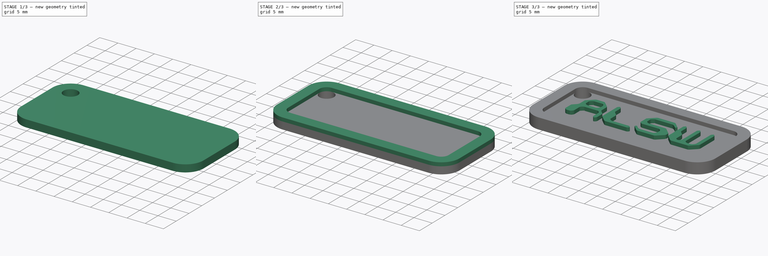
[diagram: build sequence overview — one tinted view per stage of 3, left to right]
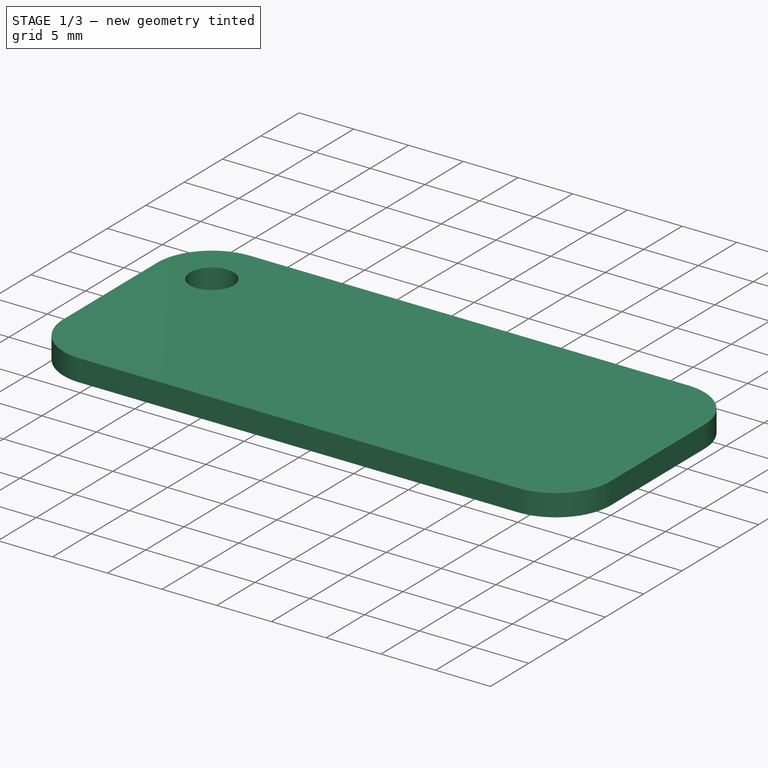
[diagram: stage 1 of 3 — iso view after this stage's code; geometry added in this stage tinted green]
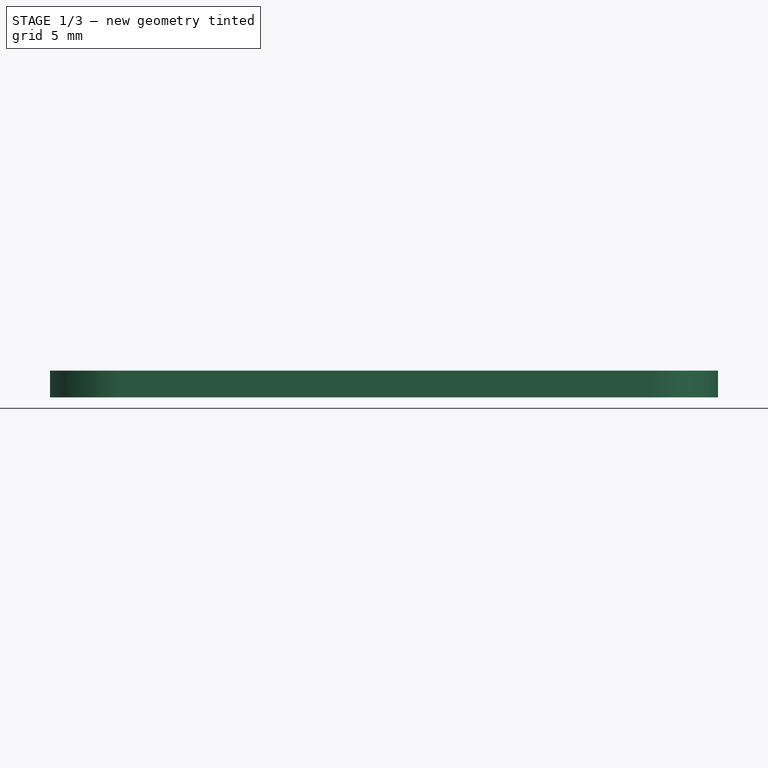
[diagram: stage 1 of 3 — front view after this stage's code; geometry added in this stage tinted green]
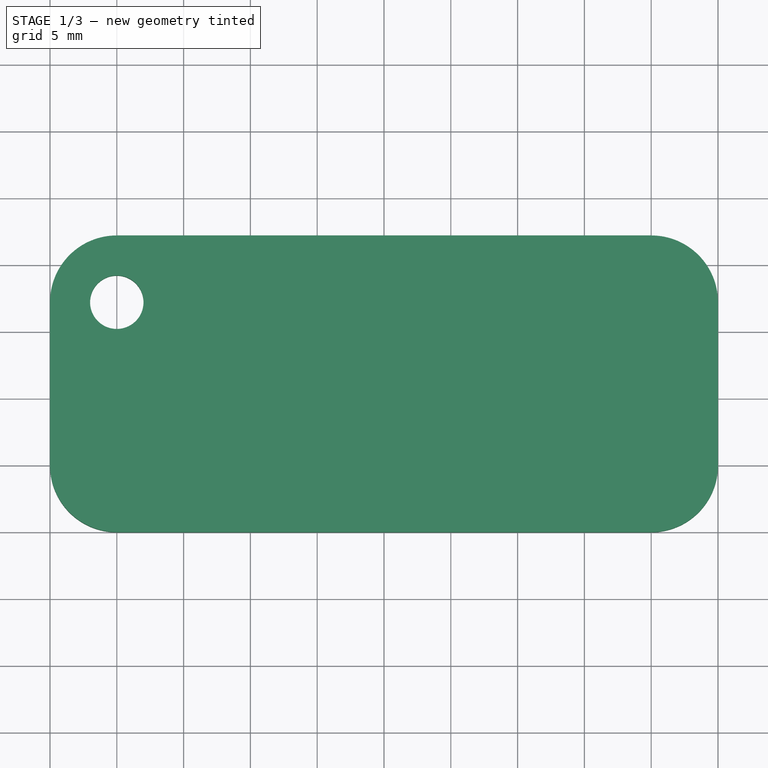
[diagram: stage 1 of 3 — top view after this stage's code; geometry added in this stage tinted green]
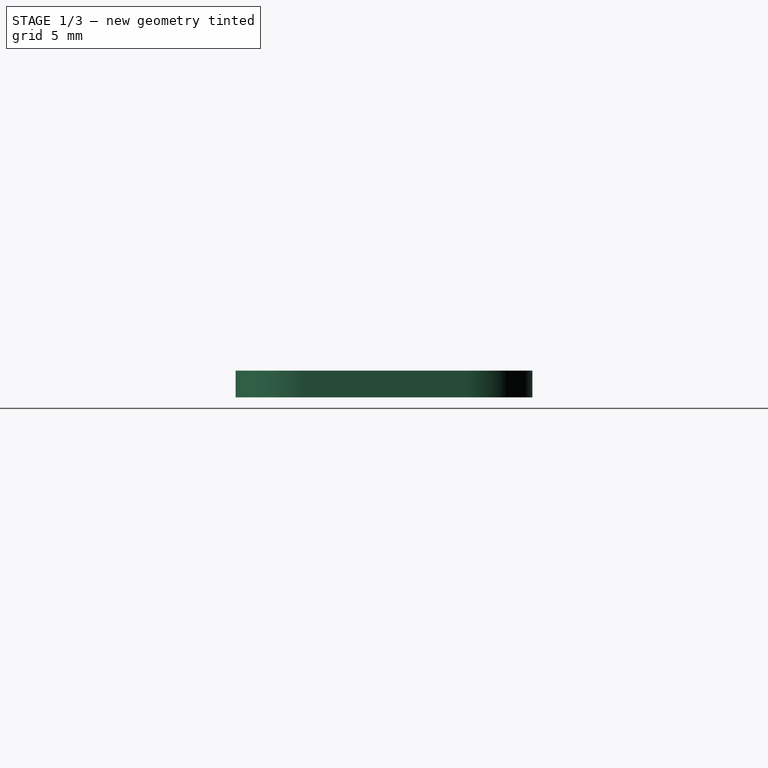
[diagram: stage 1 of 3 — right view after this stage's code; geometry added in this stage tinted green]
FCSTD DOCUMENT  (FreeCAD 0.15R4671 (Git))
Label: Llavero Logo
License: All rights reserved
LicenseURL: http://en.wikipedia.org/wiki/All_rights_reserved
objects: Part::Feature×5, Sketcher::SketchObject×3, Part::Extrusion×3, Part::FeaturePython×1, PartDesign::Pocket×1, Part::MultiFuse×1
note: 15 computed .brp shape members not serialized (recipe doc carries the construction recipe); baked Part::Feature solids carry a one-line shape summary decoded from their .brp

FEATURE [Sketcher::SketchObject] Sketch001
  sketch-geometry (8):
    g0: LineSegment StartX=5 StartY=22.21 StartZ=0 EndX=45 EndY=22.21 EndZ=0
    g1: LineSegment StartX=50 StartY=17.21 StartZ=0 EndX=50 EndY=5 EndZ=0
    g2: LineSegment StartX=45 StartY=0 StartZ=0 EndX=5 EndY=0 EndZ=0
    g3: LineSegment StartX=0 StartY=5 StartZ=0 EndX=0 EndY=17.21 EndZ=0
    g4: ArcOfCircle CenterX=5 CenterY=5 CenterZ=0 NormalX=0 NormalY=0 NormalZ=1 Radius=5 StartAngle=3.14159 EndAngle=4.71239
    g5: ArcOfCircle CenterX=45 CenterY=5 CenterZ=0 NormalX=0 NormalY=0 NormalZ=1 Radius=5 StartAngle=4.71239 EndAngle=6.28319
    g6: ArcOfCircle CenterX=45 CenterY=17.21 CenterZ=0 NormalX=0 NormalY=0 NormalZ=1 Radius=5 StartAngle=0 EndAngle=1.5708
    g7: ArcOfCircle CenterX=5 CenterY=17.21 CenterZ=0 NormalX=0 NormalY=0 NormalZ=1 Radius=5 StartAngle=1.5708 EndAngle=3.14159
  constraints (20):
    c: Horizontal(g0)
    c: Horizontal(g2)
    c: Vertical(g1)
    c: Vertical(g3)
    c: Tangent(g3,g4) = 1.5708
    c: Tangent(g2,g4) = 1.5708
    c: Tangent(g2,g5) = 1.5708
    c: Tangent(g1,g5) = 1.5708
    c: Tangent(g1,g6) = 1.5708
    c: Tangent(g0,g6) = 1.5708
    c: Tangent(g3,g7) = 1.5708
    c: Tangent(g0,g7) = 1.5708
    c: Radius(g4) = 5
    c: Radius(g7) = 5
    c: Radius(g6) = 5
    c: Radius(g5) = 5
    c: DistanceX(g3,g1) = 50
    c: DistanceY(g0,g2) = -22.21
    c: DistanceX(g-1,g4) = 5
    c: DistanceY(g-1,g4) = 5
FEATURE [Part::Extrusion] Extrude004
  Base = -> Sketch001
  Dir = (0,0,-2)
  Solid = true
FEATURE [Sketcher::SketchObject] Sketch002
  ExternalGeometry = -> [Extrude004]
  Support = -> Extrude004 [Face9]
  sketch-geometry (1):
    g0: Circle CenterX=5 CenterY=17.21 CenterZ=0 NormalX=0 NormalY=0 NormalZ=1 Radius=2
  constraints (2):
    c: Coincident(g0,g-3)
    c: Radius(g0) = 2
FEATURE [PartDesign::Pocket] Pocket
  Length = 5
  Sketch = -> Sketch002
  Type = 0
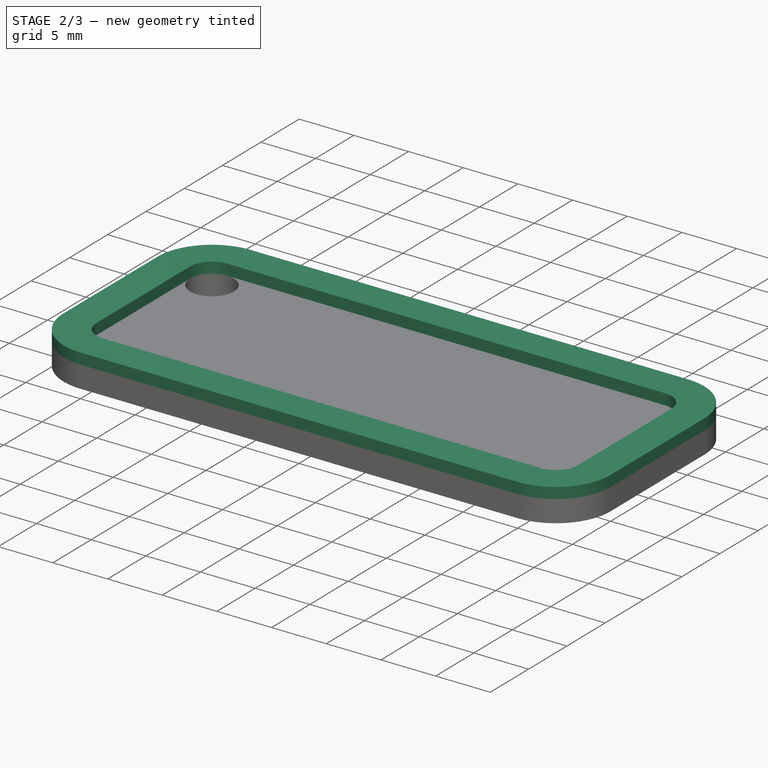
[diagram: stage 2 of 3 — iso view after this stage's code; geometry added in this stage tinted green]
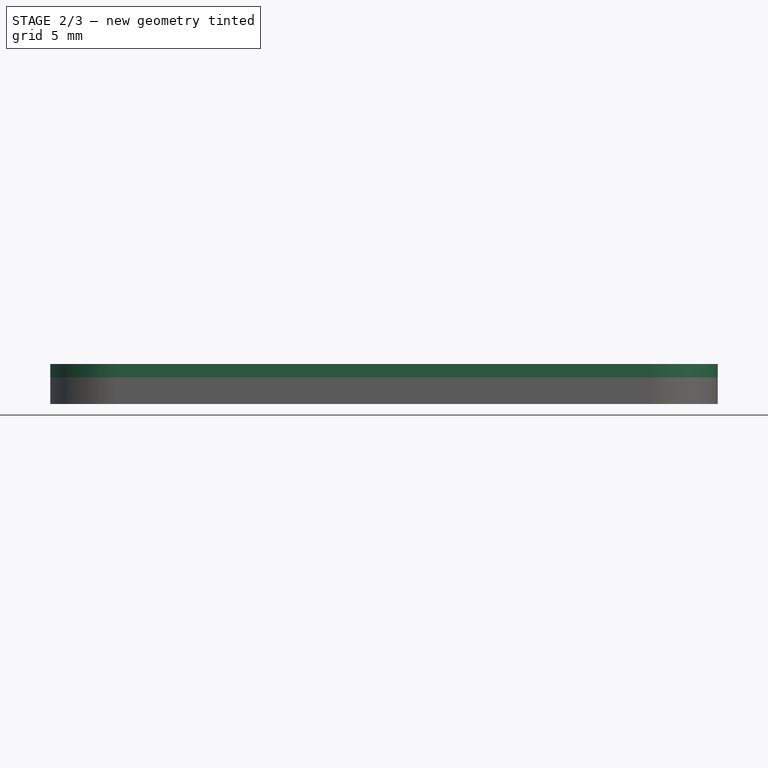
[diagram: stage 2 of 3 — front view after this stage's code; geometry added in this stage tinted green]
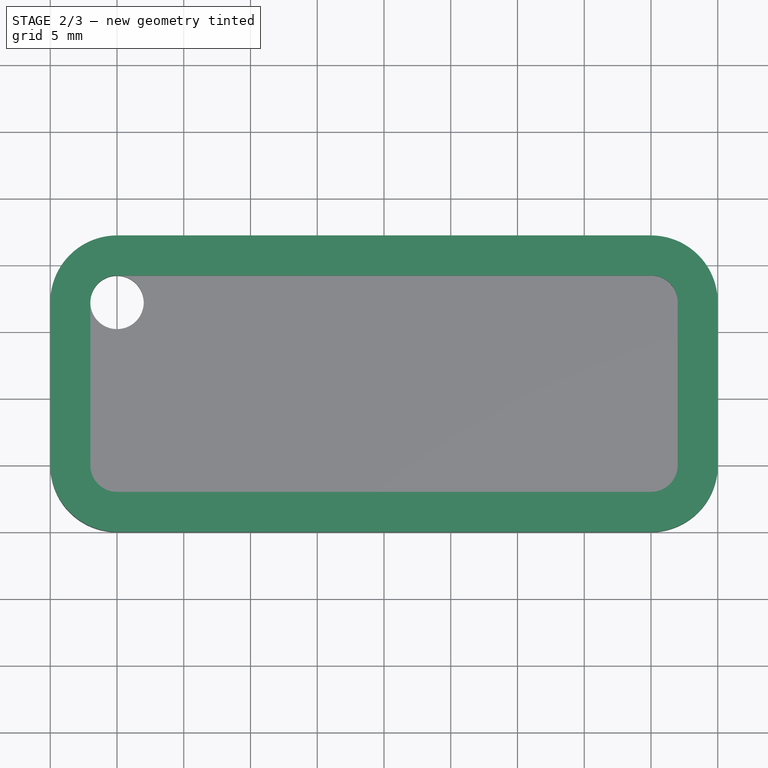
[diagram: stage 2 of 3 — top view after this stage's code; geometry added in this stage tinted green]
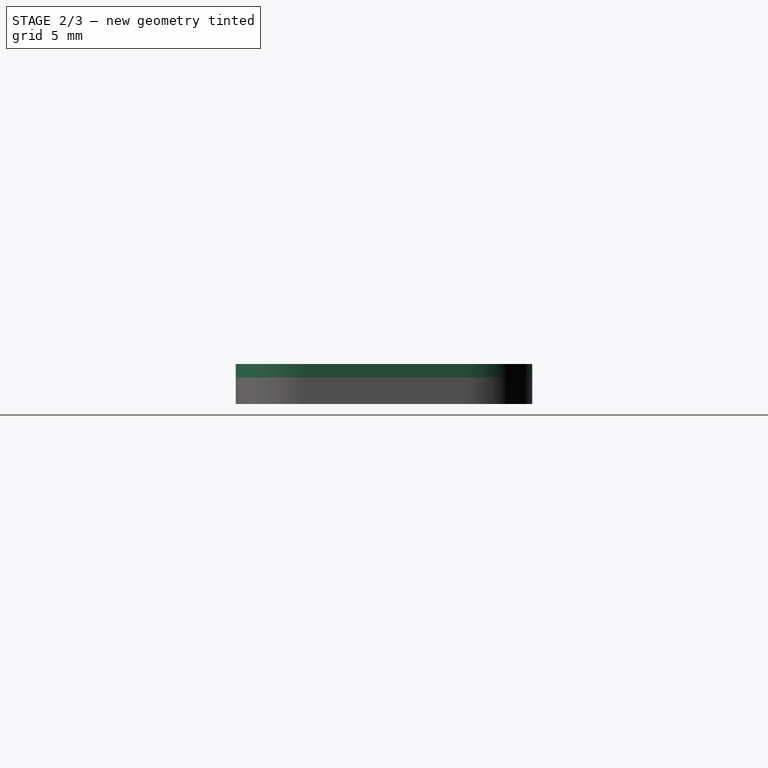
[diagram: stage 2 of 3 — right view after this stage's code; geometry added in this stage tinted green]
FEATURE [Part::Extrusion] Extrude001
  Base = -> Sketch
  Dir = (0,0,1)
  Solid = true
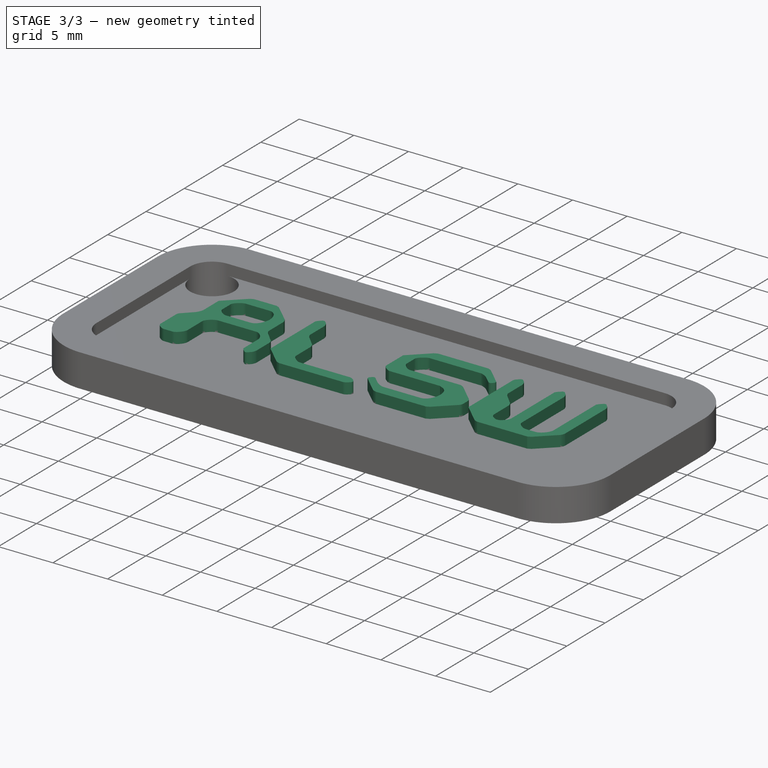
[diagram: stage 3 of 3 — iso view after this stage's code; geometry added in this stage tinted green]
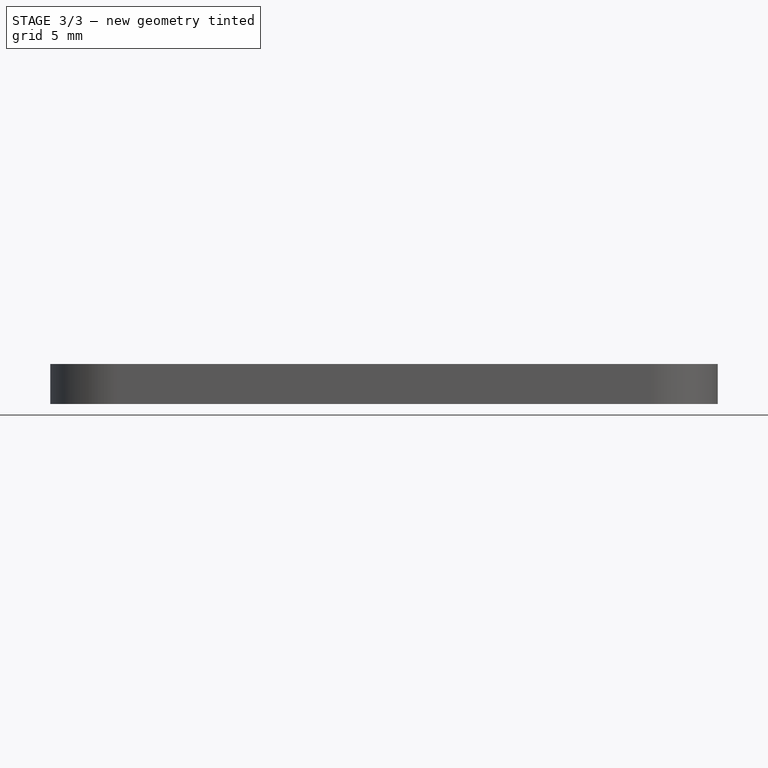
[diagram: stage 3 of 3 — front view after this stage's code; geometry added in this stage tinted green]
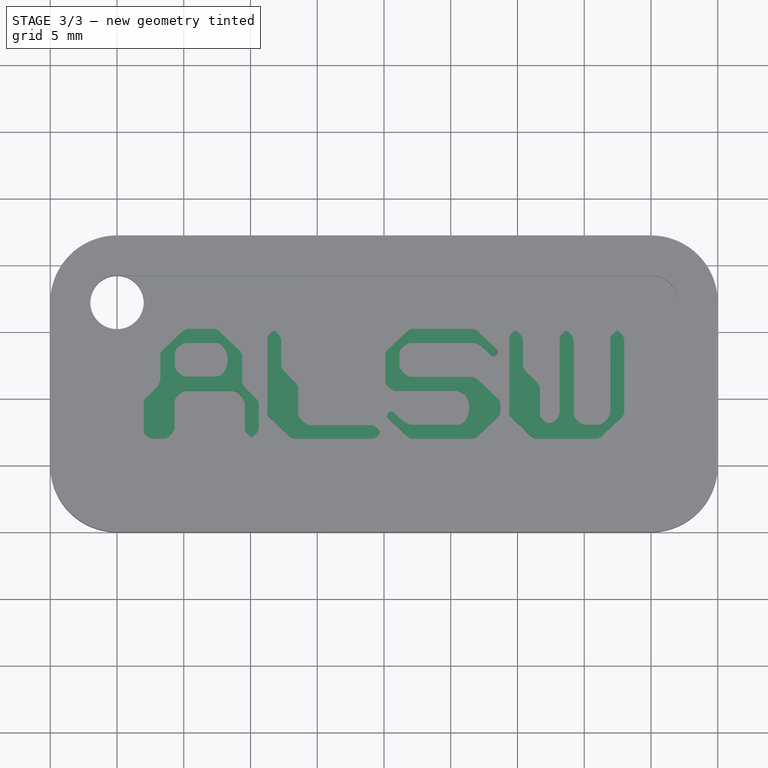
[diagram: stage 3 of 3 — top view after this stage's code; geometry added in this stage tinted green]
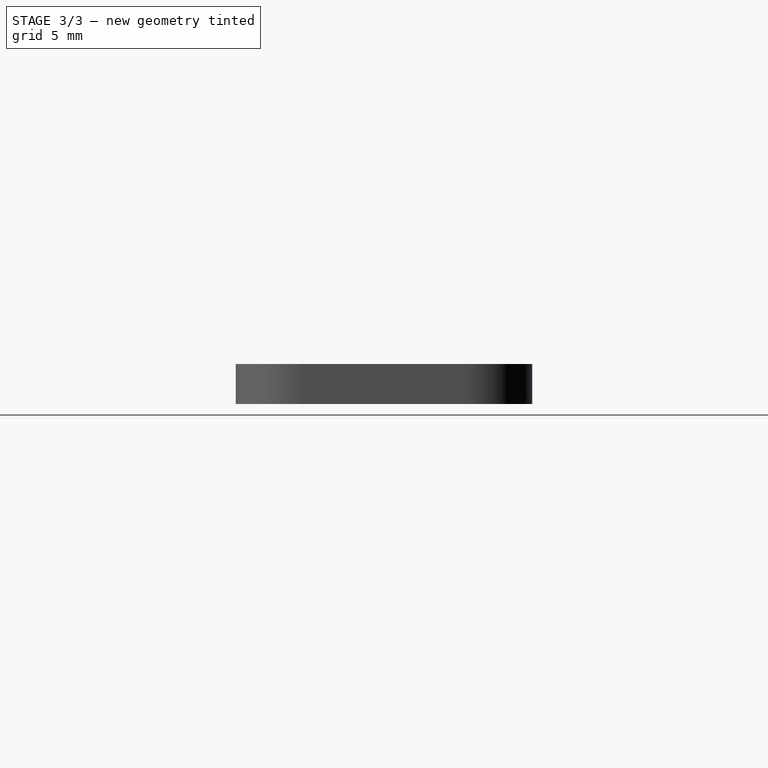
[diagram: stage 3 of 3 — right view after this stage's code; geometry added in this stage tinted green]
FEATURE [Part::Feature] path4550001  label="W"
  Placement = pos=(-49.0867,79.3521,0) rot=(0,0,1;0rad)
  shape: bbox 50.97 x 47.66 x 2e-07 mm, 0 faces, 0 solids (baked)
FEATURE [Part::Feature] path4548001  label="S"
  Placement = pos=(-49.0867,79.3521,0) rot=(0,0,1;0rad)
  shape: bbox 50.97 x 48.54 x 2e-07 mm, 0 faces, 0 solids (baked)
FEATURE [Part::Feature] path4546001  label="L"
  Placement = pos=(-49.0867,79.3521,0) rot=(0,0,1;0rad)
  shape: bbox 49.83 x 47.66 x 2e-07 mm, 0 faces, 0 solids (baked)
FEATURE [Part::Feature] path4544001  label="A1"
  Placement = pos=(-49.0867,79.3521,0) rot=(0,0,1;0rad)
  shape: bbox 50.97 x 48.54 x 2e-07 mm, 0 faces, 0 solids (baked)
FEATURE [Part::Feature] path4544002  label="A2"
  Placement = pos=(-49.0867,79.3521,0) rot=(0,0,1;0rad)
  shape: bbox 23.41 x 15.07 x 2e-07 mm, 0 faces, 0 solids (baked)
FEATURE [Sketcher::SketchObject] Sketch
  sketch-geometry (16):
    g0: LineSegment StartX=5 StartY=19.21 StartZ=0 EndX=45 EndY=19.21 EndZ=0
    g1: LineSegment StartX=47 StartY=17.21 StartZ=0 EndX=47 EndY=5 EndZ=0
    g2: LineSegment StartX=45 StartY=3 StartZ=0 EndX=5 EndY=3 EndZ=0
    g3: LineSegment StartX=3 StartY=5 StartZ=0 EndX=3 EndY=17.21 EndZ=0
    g4: ArcOfCircle CenterX=5 CenterY=17.21 CenterZ=0 NormalX=0 NormalY=0 NormalZ=1 Radius=2 StartAngle=1.5708 EndAngle=3.14159
    g5: ArcOfCircle CenterX=45 CenterY=17.21 CenterZ=0 NormalX=0 NormalY=0 NormalZ=1 Radius=2 StartAngle=0 EndAngle=1.5708
    g6: ArcOfCircle CenterX=45 CenterY=5 CenterZ=0 NormalX=0 NormalY=0 NormalZ=1 Radius=2 StartAngle=4.71239 EndAngle=6.28319
    g7: ArcOfCircle CenterX=5 CenterY=5 CenterZ=0 NormalX=0 NormalY=0 NormalZ=1 Radius=2 StartAngle=3.14159 EndAngle=4.71239
    g8: LineSegment StartX=5 StartY=22.21 StartZ=0 EndX=45 EndY=22.21 EndZ=0
    g9: LineSegment StartX=50 StartY=17.21 StartZ=0 EndX=50 EndY=5 EndZ=0
    g10: LineSegment StartX=45 StartY=0 StartZ=0 EndX=5 EndY=0 EndZ=0
    g11: LineSegment StartX=0 StartY=5 StartZ=0 EndX=0 EndY=17.21 EndZ=0
    g12: ArcOfCircle CenterX=5 CenterY=5 CenterZ=0 NormalX=0 NormalY=0 NormalZ=1 Radius=5 StartAngle=3.14159 EndAngle=4.71239
    g13: ArcOfCircle CenterX=45 CenterY=5 CenterZ=0 NormalX=0 NormalY=0 NormalZ=1 Radius=5 StartAngle=4.71239 EndAngle=6.28319
    g14: ArcOfCircle CenterX=45 CenterY=17.21 CenterZ=0 NormalX=0 NormalY=0 NormalZ=1 Radius=5 StartAngle=0 EndAngle=1.5708
    g15: ArcOfCircle CenterX=5 CenterY=17.21 CenterZ=0 NormalX=0 NormalY=0 NormalZ=1 Radius=5 StartAngle=1.5708 EndAngle=3.14159
  constraints (40):
    c: Horizontal(g0)
    c: Horizontal(g2)
    c: Vertical(g1)
    c: Vertical(g3)
    c: Tangent(g3,g4) = 1.5708
    c: Tangent(g0,g4) = 1.5708
    c: Tangent(g0,g5) = 1.5708
    c: Tangent(g1,g5) = 1.5708
    c: Tangent(g1,g6) = 1.5708
    c: Tangent(g2,g6) = 1.5708
    c: Tangent(g2,g7) = 1.5708
    c: Tangent(g3,g7) = 1.5708
    c: Horizontal(g8)
    c: Horizontal(g10)
    c: Vertical(g9)
    c: Vertical(g11)
    c: Tangent(g11,g12) = 1.5708
    c: Tangent(g10,g12) = 1.5708
    c: Tangent(g10,g13) = 1.5708
    c: Tangent(g9,g13) = 1.5708
    c: Tangent(g9,g14) = 1.5708
    c: Tangent(g8,g14) = 1.5708
    c: Tangent(g11,g15) = 1.5708
    c: Tangent(g8,g15) = 1.5708
    c: Radius(g12) = 5
    c: Radius(g7) = 2
    c: DistanceX(g11,g3) = 3
    c: DistanceY(g2,g10) = -3
    c: Radius(g4) = 2
    c: Radius(g15) = 5
    c: DistanceY(g0,g8) = 3
    c: Radius(g5) = 2
    c: Radius(g14) = 5
    c: DistanceX(g9,g1) = -3
    c: Radius(g6) = 2
    c: Radius(g13) = 5
    c: DistanceX(g-1,g7) = 5
    c: DistanceY(g-1,g7) = 5
    c: DistanceX(g11,g9) = 50
    c: DistanceY(g8,g10) = -22.21
FEATURE [Part::FeaturePython] Scale  # Draft clone (typed FeaturePython)
  Objects = -> [path4550001,path4548001,path4546001,path4544001,path4544002]
  Placement = pos=(7,7,0) rot=(0,0,1;0rad)
  Scale = (0.16914,0.16914,0)
FEATURE [Part::Extrusion] Extrude
  Base = -> Scale
  Dir = (0,0,1)
  Solid = true
FEATURE [Part::MultiFuse] Fusion
  Shapes = -> [Extrude001,Extrude,Pocket]
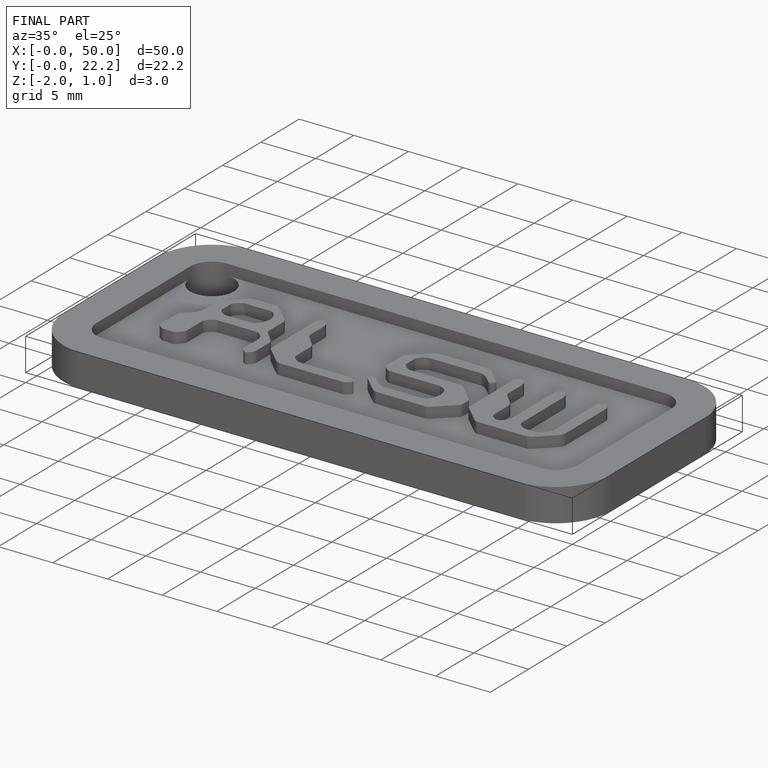
[diagram: finished part — iso view with bounding-box wireframe]
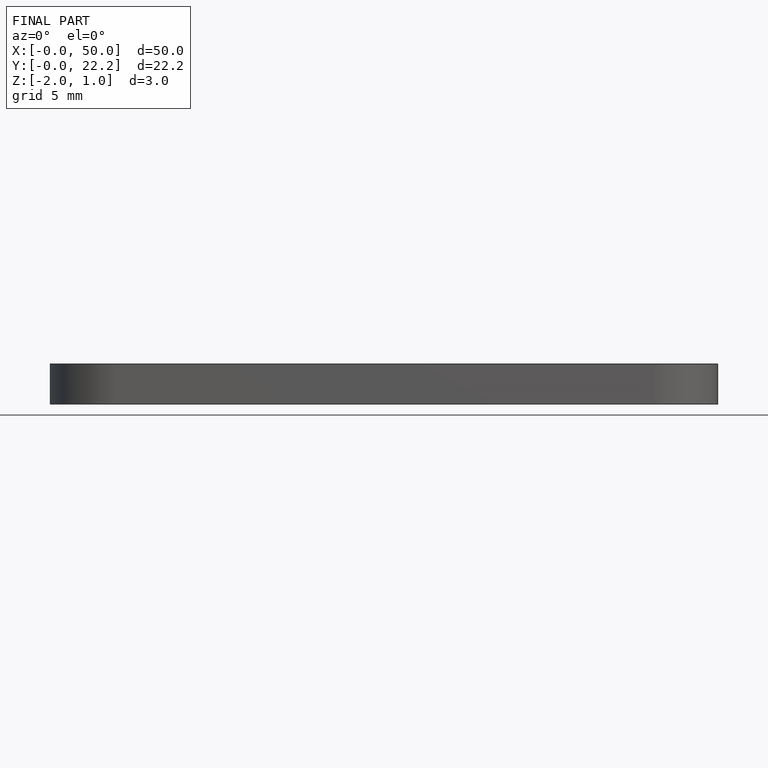
[diagram: finished part — front view with bounding-box wireframe]
